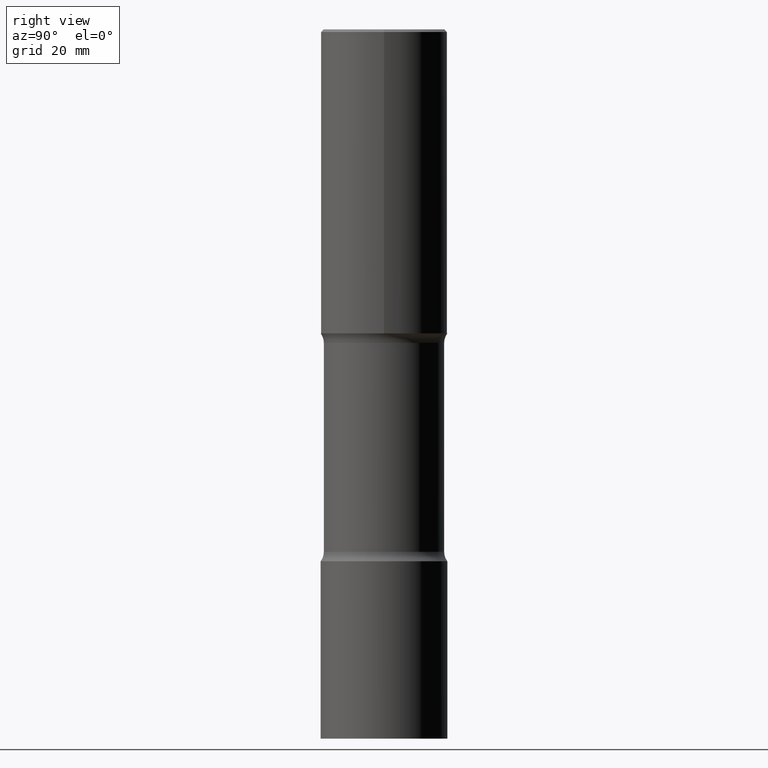
[diagram: clean part render]
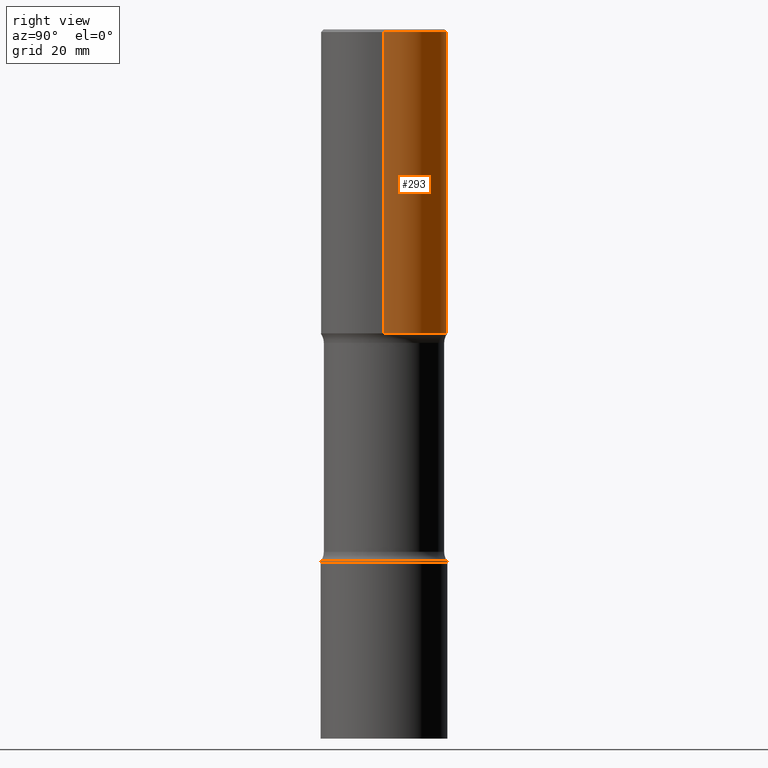
[diagram: same view with one face highlighted and labeled with its STEP entity id]
A machine part, right view. The second image highlights one B-rep face of the part: STEP entity #293.
In plain terms, the highlighted cylindrical surface (partial cylindrical patch) has radius 12.5006 mm, axis along (-0, 0, 1).
Its self-contained STEP definition (entity closure, byte-faithful):
#4 = LINE ( 'NONE', #120, #350 ) ;
#16 = FACE_OUTER_BOUND ( 'NONE', #57, .T. ) ;
#57 = EDGE_LOOP ( 'NONE', ( #139, #316, #101, #297 ) ) ;
#101 = ORIENTED_EDGE ( 'NONE', *, *, #239, .F. ) ;
#111 = CIRCLE ( 'NONE', #252, 0.4921499999999996988 ) ;
#115 = CARTESIAN_POINT ( 'NONE',  ( 5.776686413970527511E-29, -8.247577218615276471E-15, -2.362199999999999189 ) ) ;
#119 = DIRECTION ( 'NONE',  ( 1.000000000000000000, -6.982962677686263555E-15, 0.000000000000000000 ) ) ;
#120 = CARTESIAN_POINT ( 'NONE',  ( 0.4921499999999998098, -3.436665081823294593E-15, 2.399810400207968762E-29 ) ) ;
#122 = CARTESIAN_POINT ( 'NONE',  ( 0.4921499999999996988, -3.446223716380120377E-15, -0.02000000000000013572 ) ) ;
#128 = EDGE_CURVE ( 'NONE', #159, #439, #145, .T. ) ;
#133 = VECTOR ( 'NONE', #465, 39.37007874015748143 ) ;
#139 = ORIENTED_EDGE ( 'NONE', *, *, #155, .T. ) ;
#145 = LINE ( 'NONE', #153, #133 ) ;
#153 = CARTESIAN_POINT ( 'NONE',  ( -0.4921499999999998098, 3.496936074043331714E-15, -2.420853904668950949E-29 ) ) ;
#154 = DIRECTION ( 'NONE',  ( -2.445468806185136597E-29, 3.491481338843145583E-15, 1.000000000000000000 ) ) ;
#155 = EDGE_CURVE ( 'NONE', #454, #159, #276, .T. ) ;
#159 = VERTEX_POINT ( 'NONE', #468 ) ;
#232 = DIRECTION ( 'NONE',  ( -2.445468806185136877E-29, 3.491481338843145188E-15, 1.000000000000000000 ) ) ;
#237 = DIRECTION ( 'NONE',  ( -2.445468806185136597E-29, 3.491481338843145583E-15, 1.000000000000000000 ) ) ;
#239 = EDGE_CURVE ( 'NONE', #359, #439, #111, .T. ) ;
#240 = CARTESIAN_POINT ( 'NONE',  ( 0.000000000000000000, 0.000000000000000000, 0.000000000000000000 ) ) ;
#252 = AXIS2_PLACEMENT_3D ( 'NONE', #351, #154, #391 ) ;
#266 = DIRECTION ( 'NONE',  ( -2.445468806185136597E-29, 3.491481338843145583E-15, 1.000000000000000000 ) ) ;
#276 = CIRCLE ( 'NONE', #433, 0.4921499999999999764 ) ;
#293 = ADVANCED_FACE ( 'NONE', ( #16 ), #311, .T. ) ;
#297 = ORIENTED_EDGE ( 'NONE', *, *, #362, .F. ) ;
#311 = CYLINDRICAL_SURFACE ( 'NONE', #435, 0.4921499999999998098 ) ;
#316 = ORIENTED_EDGE ( 'NONE', *, *, #128, .T. ) ;
#330 = CARTESIAN_POINT ( 'NONE',  ( 0.4921499999999999764, -1.168424230043857067E-14, -2.362199999999999189 ) ) ;
#350 = VECTOR ( 'NONE', #232, 39.37007874015748143 ) ;
#351 = CARTESIAN_POINT ( 'NONE',  ( 4.890937612370306439E-31, -6.982962677686338448E-17, -0.02000000000000013572 ) ) ;
#359 = VERTEX_POINT ( 'NONE', #122 ) ;
#362 = EDGE_CURVE ( 'NONE', #454, #359, #4, .T. ) ;
#371 = CARTESIAN_POINT ( 'NONE',  ( -0.4921499999999996988, 3.366835455046430506E-15, -0.02000000000000013572 ) ) ;
#391 = DIRECTION ( 'NONE',  ( 1.000000000000000000, -6.982962677686265922E-15, 0.000000000000000000 ) ) ;
#395 = DIRECTION ( 'NONE',  ( 1.000000000000000000, -6.982962677686265922E-15, 4.876176775795935793E-29 ) ) ;
#433 = AXIS2_PLACEMENT_3D ( 'NONE', #115, #266, #119 ) ;
#435 = AXIS2_PLACEMENT_3D ( 'NONE', #240, #237, #395 ) ;
#439 = VERTEX_POINT ( 'NONE', #371 ) ;
#454 = VERTEX_POINT ( 'NONE', #330 ) ;
#465 = DIRECTION ( 'NONE',  ( -2.445468806185136877E-29, 3.491481338843145188E-15, 1.000000000000000000 ) ) ;
#468 = CARTESIAN_POINT ( 'NONE',  ( -0.4921499999999999764, -6.617673486527353114E-16, -2.362199999999999189 ) ) ;